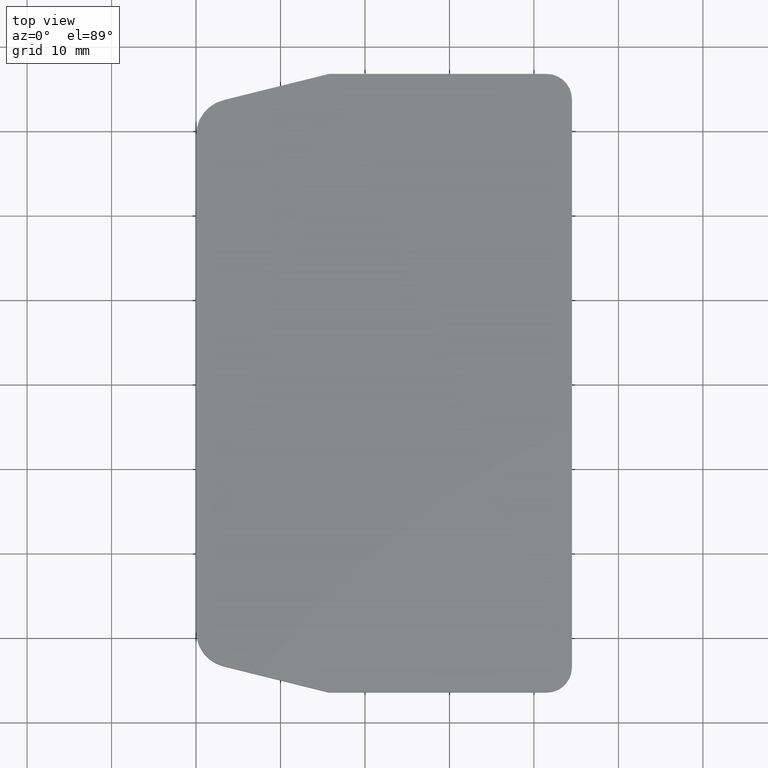
[diagram: clean part render]
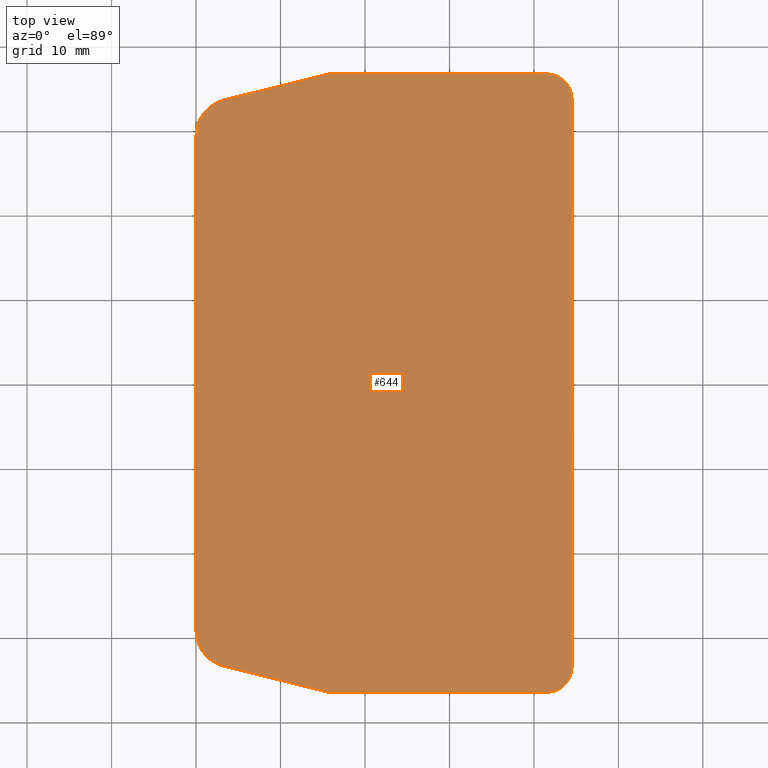
[diagram: same view with one face highlighted and labeled with its STEP entity id]
A machine part, top view. The second image highlights one B-rep face of the part: STEP entity #644.
In plain terms, the highlighted planar face has unit normal (0, 0, 1).
Its self-contained STEP definition (entity closure, byte-faithful):
#24=CIRCLE('',#695,2.99999999998909);
#26=CIRCLE('',#700,4.29673551604732);
#28=CIRCLE('',#704,4.29999999996835);
#30=CIRCLE('',#709,2.99999999998545);
#86=FACE_OUTER_BOUND('',#130,.T.);
#130=EDGE_LOOP('',(#495,#496,#497,#498,#499,#500,#501,#502,#503,#504));
#161=LINE('',#976,#219);
#166=LINE('',#989,#224);
#169=LINE('',#995,#227);
#173=LINE('',#1007,#231);
#177=LINE('',#1019,#235);
#180=LINE('',#1025,#238);
#219=VECTOR('',#770,67.2119999997303);
#224=VECTOR('',#783,25.7499999998945);
#227=VECTOR('',#788,12.8672123176387);
#231=VECTOR('',#800,58.6699999997654);
#235=VECTOR('',#812,12.8346385930391);
#238=VECTOR('',#817,25.7828573274437);
#277=VERTEX_POINT('',#973);
#278=VERTEX_POINT('',#975);
#280=VERTEX_POINT('',#981);
#282=VERTEX_POINT('',#987);
#284=VERTEX_POINT('',#993);
#286=VERTEX_POINT('',#999);
#288=VERTEX_POINT('',#1005);
#290=VERTEX_POINT('',#1011);
#292=VERTEX_POINT('',#1017);
#294=VERTEX_POINT('',#1023);
#337=EDGE_CURVE('',#278,#277,#161,.T.);
#341=EDGE_CURVE('',#277,#280,#24,.T.);
#344=EDGE_CURVE('',#280,#282,#166,.T.);
#347=EDGE_CURVE('',#282,#284,#169,.T.);
#350=EDGE_CURVE('',#284,#286,#26,.T.);
#353=EDGE_CURVE('',#286,#288,#173,.T.);
#356=EDGE_CURVE('',#288,#290,#28,.T.);
#359=EDGE_CURVE('',#290,#292,#177,.T.);
#362=EDGE_CURVE('',#292,#294,#180,.T.);
#364=EDGE_CURVE('',#294,#278,#30,.T.);
#495=ORIENTED_EDGE('',*,*,#337,.T.);
#496=ORIENTED_EDGE('',*,*,#341,.T.);
#497=ORIENTED_EDGE('',*,*,#344,.T.);
#498=ORIENTED_EDGE('',*,*,#347,.T.);
#499=ORIENTED_EDGE('',*,*,#350,.T.);
#500=ORIENTED_EDGE('',*,*,#353,.T.);
#501=ORIENTED_EDGE('',*,*,#356,.T.);
#502=ORIENTED_EDGE('',*,*,#359,.T.);
#503=ORIENTED_EDGE('',*,*,#362,.T.);
#504=ORIENTED_EDGE('',*,*,#364,.T.);
#616=PLANE('',#727);
#644=ADVANCED_FACE('',(#86),#616,.T.);
#695=AXIS2_PLACEMENT_3D('',#983,#777,#778);
#700=AXIS2_PLACEMENT_3D('',#1001,#794,#795);
#704=AXIS2_PLACEMENT_3D('',#1013,#806,#807);
#709=AXIS2_PLACEMENT_3D('',#1028,#822,#823);
#727=AXIS2_PLACEMENT_3D('',#1074,#866,#867);
#770=DIRECTION('',(0.,1.,0.));
#777=DIRECTION('center_axis',(0.,0.,1.));
#778=DIRECTION('ref_axis',(1.,0.,0.));
#783=DIRECTION('',(-1.,0.,0.));
#788=DIRECTION('',(-0.970528039880192,-0.240988223376814,0.));
#794=DIRECTION('center_axis',(0.,0.,1.));
#795=DIRECTION('ref_axis',(-0.240801328009108,0.970574428072907,0.));
#800=DIRECTION('',(0.,-1.,0.));
#806=DIRECTION('center_axis',(0.,0.,1.));
#807=DIRECTION('ref_axis',(-1.,0.,0.));
#812=DIRECTION('',(0.970431203906118,-0.24137787488774,0.));
#817=DIRECTION('',(1.,0.,0.));
#822=DIRECTION('center_axis',(0.,0.,1.));
#823=DIRECTION('ref_axis',(1.21266E-12,-1.,0.));
#866=DIRECTION('center_axis',(0.,0.,1.));
#867=DIRECTION('ref_axis',(1.,0.,0.));
#973=CARTESIAN_POINT('',(44.500066246932,33.6061480345306,2.5));
#975=CARTESIAN_POINT('',(44.500066246932,-33.6058519651997,2.5));
#976=CARTESIAN_POINT('',(44.500066246932,-33.6058519651997,2.5));
#981=CARTESIAN_POINT('',(41.5000662469429,36.6061480345197,2.5));
#983=CARTESIAN_POINT('Origin',(41.5000662469429,33.6061480345306,2.5));
#987=CARTESIAN_POINT('',(15.7500662470484,36.6061480345197,2.5));
#989=CARTESIAN_POINT('',(41.5000662469429,36.6061480345197,2.5));
#993=CARTESIAN_POINT('',(3.26207589768819,33.5053013982797,2.5));
#995=CARTESIAN_POINT('',(15.7500662470484,36.6061480345197,2.5));
#999=CARTESIAN_POINT('',(0.,29.3349999998827,2.5));
#1001=CARTESIAN_POINT('Origin',(4.29673551605629,29.3349997822115,2.5));
#1005=CARTESIAN_POINT('',(0.,-29.3349999998827,2.5));
#1007=CARTESIAN_POINT('',(0.,29.3349999998827,2.5));
#1011=CARTESIAN_POINT('',(3.26207513795816,-33.5078541766488,2.5));
#1013=CARTESIAN_POINT('Origin',(4.29999999996835,-29.3349999998827,2.5));
#1017=CARTESIAN_POINT('',(15.717208919501,-36.6058519651888,2.5));
#1019=CARTESIAN_POINT('',(3.26207513795816,-33.5078541766488,2.5));
#1023=CARTESIAN_POINT('',(41.5000662469447,-36.6058519651888,2.5));
#1025=CARTESIAN_POINT('',(15.717208919501,-36.6058519651888,2.5));
#1028=CARTESIAN_POINT('Origin',(41.5000662469411,-33.6058519652033,2.5));
#1074=CARTESIAN_POINT('Origin',(-4.45001139777014,-43.92705673807,2.5));